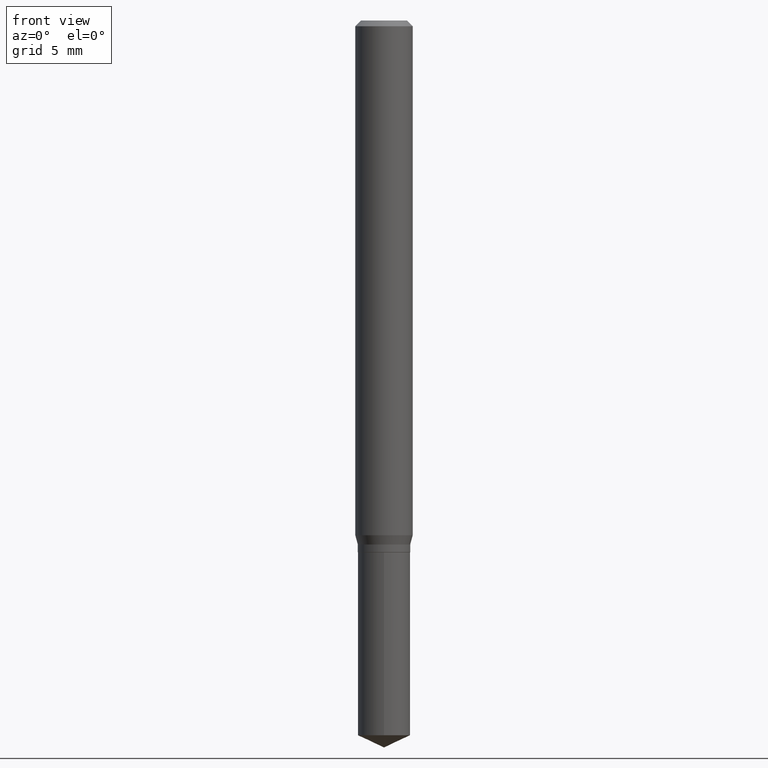
[diagram: clean part render]
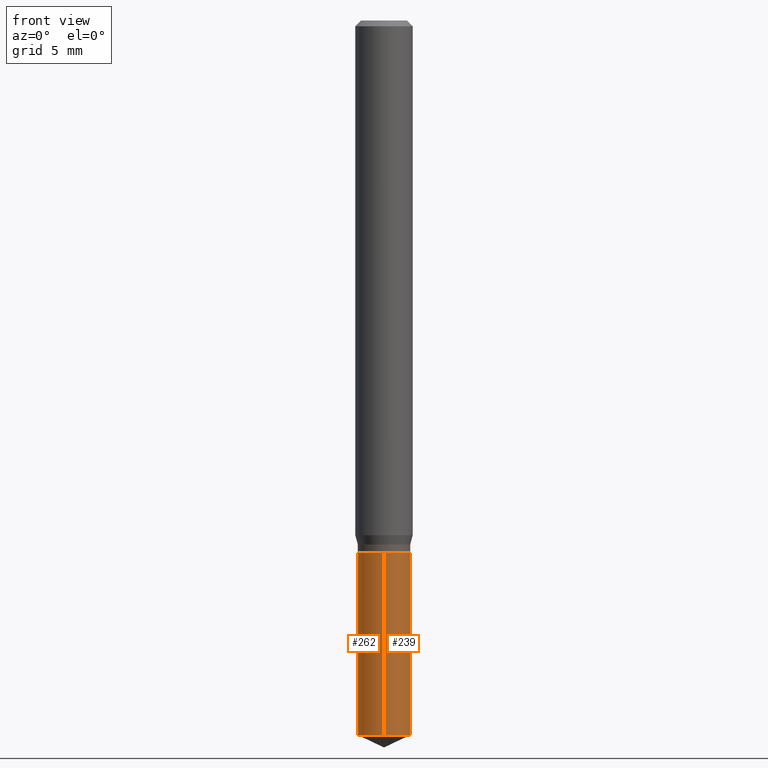
[diagram: same view with one multi-face feature highlighted, each face labeled with its STEP entity id]
A machine part, front view. The highlighted faces form ONE feature: a constant-radius fillet chain: 2 tangent blend faces with common blend radius 1.3703 mm. The faces share edges in the B-rep.
Their STEP definitions:
[1] entity #262 (Cylinder):
#6 = ORIENTED_EDGE ( 'NONE', *, *, #207, .F. ) ;
#16 = EDGE_LOOP ( 'NONE', ( #6, #106, #164, #96 ) ) ;
#17 = DIRECTION ( 'NONE',  ( -2.445458899330790108E-29, 3.491495526022433599E-15, 1.000000000000000000 ) ) ;
#20 = CARTESIAN_POINT ( 'NONE',  ( 3.833378059426100768E-16, 0.05394999999999487705, -1.470942701842538058 ) ) ;
#23 = CARTESIAN_POINT ( 'NONE',  ( -3.767308364611473060E-16, -0.05395000000000382129, -1.094499999999999806 ) ) ;
#34 = CARTESIAN_POINT ( 'NONE',  ( 2.676565608369631794E-29, -3.821426325363822773E-15, -1.094499999999999806 ) ) ;
#46 = DIRECTION ( 'NONE',  ( -2.445458899330790108E-29, 3.491495526022433205E-15, 1.000000000000000000 ) ) ;
#51 = CARTESIAN_POINT ( 'NONE',  ( -3.767308364611381355E-16, -0.05395000000000514662, -1.470942701842537614 ) ) ;
#52 = EDGE_CURVE ( 'NONE', #308, #230, #375, .T. ) ;
#53 = DIRECTION ( 'NONE',  ( -6.982962677686265922E-15, -1.000000000000000000, 2.531833172997463757E-15 ) ) ;
#65 = AXIS2_PLACEMENT_3D ( 'NONE', #421, #46, #113 ) ;
#90 = CARTESIAN_POINT ( 'NONE',  ( 2.676565608369631794E-29, -3.821426325363822773E-15, -1.094499999999999806 ) ) ;
#96 = ORIENTED_EDGE ( 'NONE', *, *, #374, .F. ) ;
#106 = ORIENTED_EDGE ( 'NONE', *, *, #52, .T. ) ;
#113 = DIRECTION ( 'NONE',  ( -6.982962677686265922E-15, -1.000000000000000000, 5.063666345994927514E-15 ) ) ;
#124 = CARTESIAN_POINT ( 'NONE',  ( -3.767308364611473060E-16, -0.05395000000000382129, -1.094499999999999806 ) ) ;
#163 = AXIS2_PLACEMENT_3D ( 'NONE', #34, #399, #252 ) ;
#164 = ORIENTED_EDGE ( 'NONE', *, *, #456, .T. ) ;
#166 = LINE ( 'NONE', #324, #321 ) ;
#207 = EDGE_CURVE ( 'NONE', #308, #401, #166, .T. ) ;
#227 = AXIS2_PLACEMENT_3D ( 'NONE', #90, #238, #53 ) ;
#230 = VERTEX_POINT ( 'NONE', #51 ) ;
#238 = DIRECTION ( 'NONE',  ( -2.445458899330790108E-29, 3.491495526022433205E-15, 1.000000000000000000 ) ) ;
#240 = DIRECTION ( 'NONE',  ( -2.445458899330790108E-29, 3.491495526022433599E-15, 1.000000000000000000 ) ) ;
#251 = VERTEX_POINT ( 'NONE', #124 ) ;
#252 = DIRECTION ( 'NONE',  ( -6.982962677686265922E-15, -1.000000000000000000, 2.531833172997463757E-15 ) ) ;
#262 = ADVANCED_FACE ( 'NONE', ( #279 ), #425, .T. ) ;
#279 = FACE_OUTER_BOUND ( 'NONE', #16, .T. ) ;
#308 = VERTEX_POINT ( 'NONE', #20 ) ;
#321 = VECTOR ( 'NONE', #240, 39.37007874015748143 ) ;
#324 = CARTESIAN_POINT ( 'NONE',  ( 3.833378059426007091E-16, 0.05394999999999617463, -1.094500000000000028 ) ) ;
#328 = CIRCLE ( 'NONE', #163, 0.05394999999999999796 ) ;
#361 = CARTESIAN_POINT ( 'NONE',  ( 3.833378059426100275E-16, 0.05394999999999617463, -1.094500000000000028 ) ) ;
#374 = EDGE_CURVE ( 'NONE', #401, #251, #328, .T. ) ;
#375 = CIRCLE ( 'NONE', #65, 0.05394999999999999796 ) ;
#399 = DIRECTION ( 'NONE',  ( -2.445458899330790108E-29, 3.491495526022433205E-15, 1.000000000000000000 ) ) ;
#401 = VERTEX_POINT ( 'NONE', #361 ) ;
#416 = VECTOR ( 'NONE', #17, 39.37007874015748143 ) ;
#421 = CARTESIAN_POINT ( 'NONE',  ( 3.597140763678593592E-29, -5.135774334650840143E-15, -1.470942701842537836 ) ) ;
#425 = CYLINDRICAL_SURFACE ( 'NONE', #227, 0.05394999999999999796 ) ;
#433 = LINE ( 'NONE', #23, #416 ) ;
#456 = EDGE_CURVE ( 'NONE', #230, #251, #433, .T. ) ;
[2] entity #239 (Cylinder):
#17 = DIRECTION ( 'NONE',  ( -2.445458899330790108E-29, 3.491495526022433599E-15, 1.000000000000000000 ) ) ;
#20 = CARTESIAN_POINT ( 'NONE',  ( 3.833378059426100768E-16, 0.05394999999999487705, -1.470942701842538058 ) ) ;
#23 = CARTESIAN_POINT ( 'NONE',  ( -3.767308364611473060E-16, -0.05395000000000382129, -1.094499999999999806 ) ) ;
#36 = AXIS2_PLACEMENT_3D ( 'NONE', #186, #384, #78 ) ;
#51 = CARTESIAN_POINT ( 'NONE',  ( -3.767308364611381355E-16, -0.05395000000000514662, -1.470942701842537614 ) ) ;
#64 = EDGE_CURVE ( 'NONE', #230, #308, #473, .T. ) ;
#78 = DIRECTION ( 'NONE',  ( -6.982962677686265922E-15, -1.000000000000000000, 5.063666345994927514E-15 ) ) ;
#87 = EDGE_CURVE ( 'NONE', #251, #401, #271, .T. ) ;
#110 = ORIENTED_EDGE ( 'NONE', *, *, #64, .T. ) ;
#123 = DIRECTION ( 'NONE',  ( -6.982962677686265922E-15, -1.000000000000000000, 2.531833172997463757E-15 ) ) ;
#124 = CARTESIAN_POINT ( 'NONE',  ( -3.767308364611473060E-16, -0.05395000000000382129, -1.094499999999999806 ) ) ;
#126 = DIRECTION ( 'NONE',  ( -2.445458899330790108E-29, 3.491495526022433205E-15, 1.000000000000000000 ) ) ;
#145 = AXIS2_PLACEMENT_3D ( 'NONE', #378, #232, #386 ) ;
#157 = CARTESIAN_POINT ( 'NONE',  ( 2.676565608369631794E-29, -3.821426325363822773E-15, -1.094499999999999806 ) ) ;
#166 = LINE ( 'NONE', #324, #321 ) ;
#186 = CARTESIAN_POINT ( 'NONE',  ( 3.597140763678593592E-29, -5.135774334650840143E-15, -1.470942701842537836 ) ) ;
#189 = AXIS2_PLACEMENT_3D ( 'NONE', #157, #126, #123 ) ;
#206 = FACE_OUTER_BOUND ( 'NONE', #241, .T. ) ;
#207 = EDGE_CURVE ( 'NONE', #308, #401, #166, .T. ) ;
#230 = VERTEX_POINT ( 'NONE', #51 ) ;
#232 = DIRECTION ( 'NONE',  ( -2.445458899330790108E-29, 3.491495526022433205E-15, 1.000000000000000000 ) ) ;
#239 = ADVANCED_FACE ( 'NONE', ( #206 ), #362, .T. ) ;
#240 = DIRECTION ( 'NONE',  ( -2.445458899330790108E-29, 3.491495526022433599E-15, 1.000000000000000000 ) ) ;
#241 = EDGE_LOOP ( 'NONE', ( #110, #298, #414, #348 ) ) ;
#251 = VERTEX_POINT ( 'NONE', #124 ) ;
#271 = CIRCLE ( 'NONE', #145, 0.05394999999999999796 ) ;
#298 = ORIENTED_EDGE ( 'NONE', *, *, #207, .T. ) ;
#308 = VERTEX_POINT ( 'NONE', #20 ) ;
#321 = VECTOR ( 'NONE', #240, 39.37007874015748143 ) ;
#324 = CARTESIAN_POINT ( 'NONE',  ( 3.833378059426007091E-16, 0.05394999999999617463, -1.094500000000000028 ) ) ;
#348 = ORIENTED_EDGE ( 'NONE', *, *, #456, .F. ) ;
#361 = CARTESIAN_POINT ( 'NONE',  ( 3.833378059426100275E-16, 0.05394999999999617463, -1.094500000000000028 ) ) ;
#362 = CYLINDRICAL_SURFACE ( 'NONE', #189, 0.05394999999999999796 ) ;
#378 = CARTESIAN_POINT ( 'NONE',  ( 2.676565608369631794E-29, -3.821426325363822773E-15, -1.094499999999999806 ) ) ;
#384 = DIRECTION ( 'NONE',  ( -2.445458899330790108E-29, 3.491495526022433205E-15, 1.000000000000000000 ) ) ;
#386 = DIRECTION ( 'NONE',  ( -6.982962677686265922E-15, -1.000000000000000000, 2.531833172997463757E-15 ) ) ;
#401 = VERTEX_POINT ( 'NONE', #361 ) ;
#414 = ORIENTED_EDGE ( 'NONE', *, *, #87, .F. ) ;
#416 = VECTOR ( 'NONE', #17, 39.37007874015748143 ) ;
#433 = LINE ( 'NONE', #23, #416 ) ;
#456 = EDGE_CURVE ( 'NONE', #230, #251, #433, .T. ) ;
#473 = CIRCLE ( 'NONE', #36, 0.05394999999999999796 ) ;